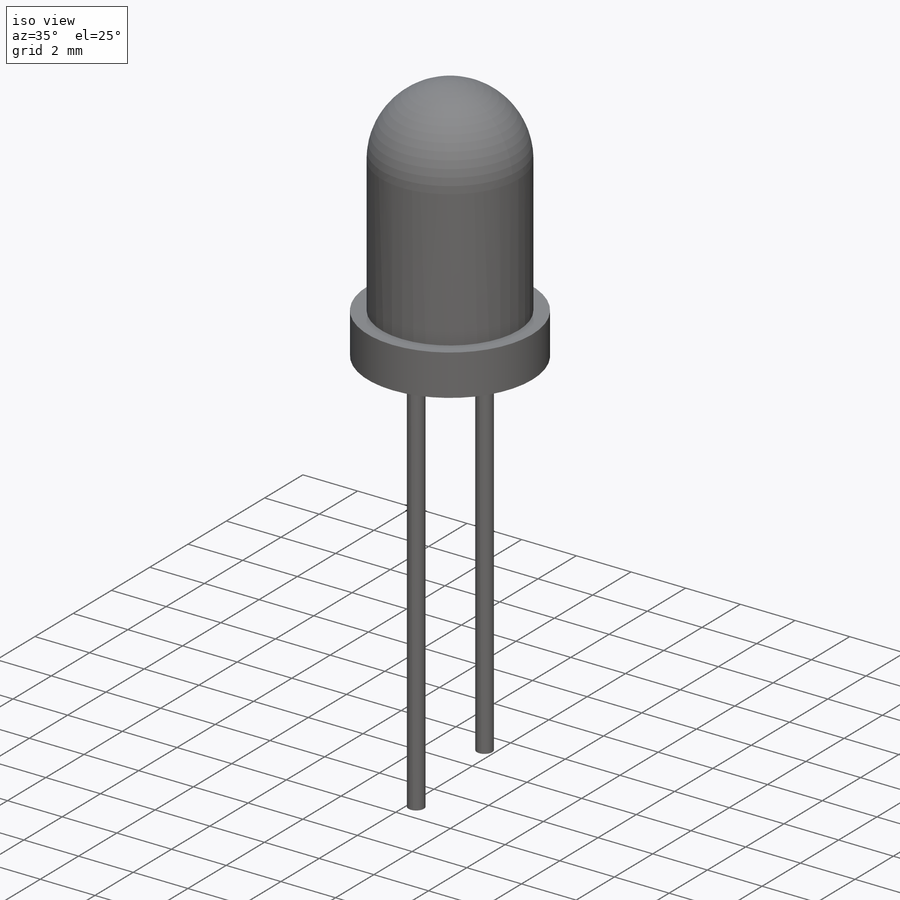
[diagram: iso view]
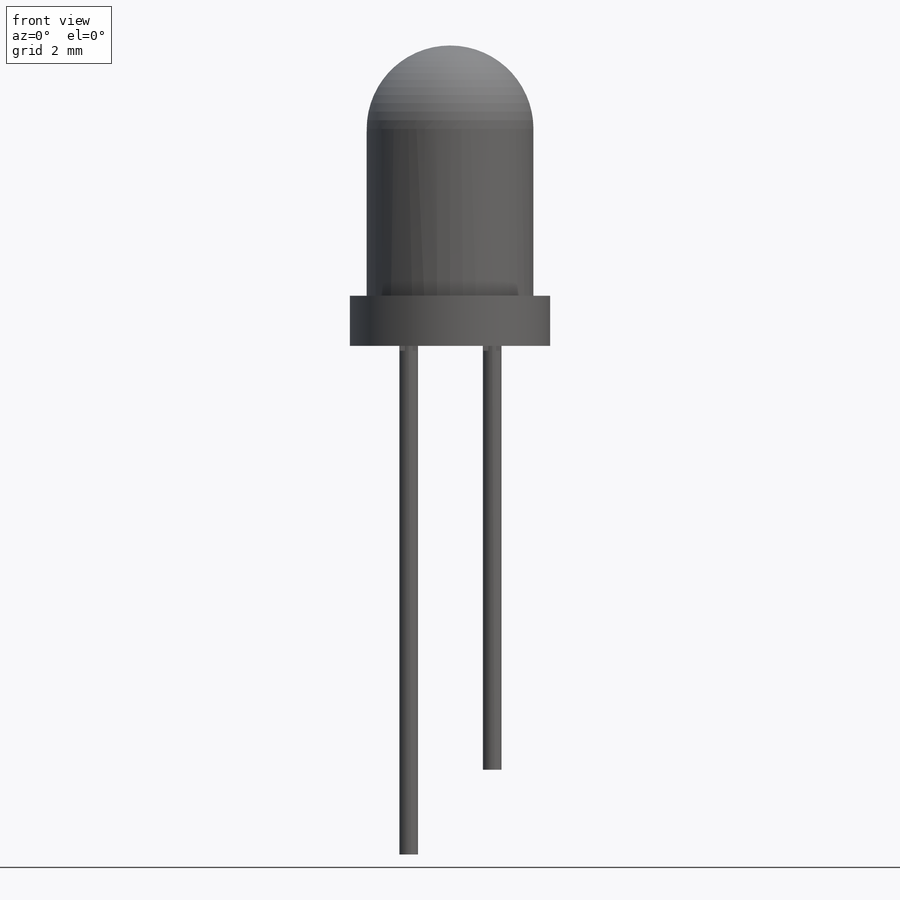
[diagram: front view]
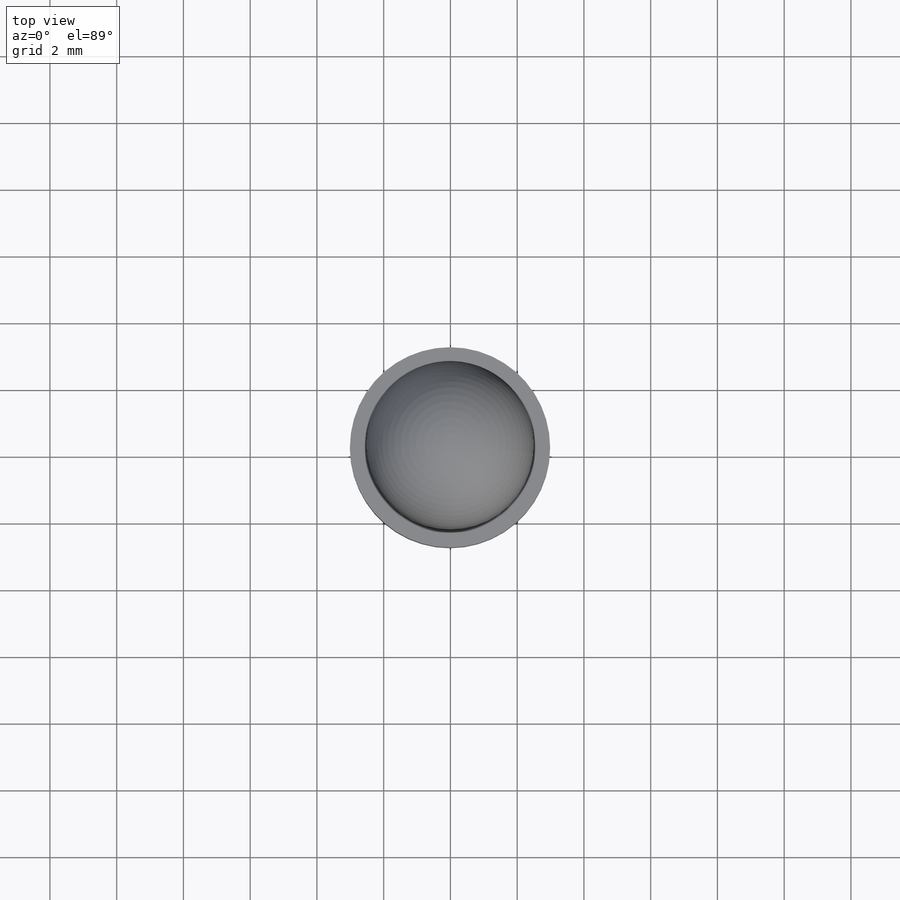
[diagram: top view]
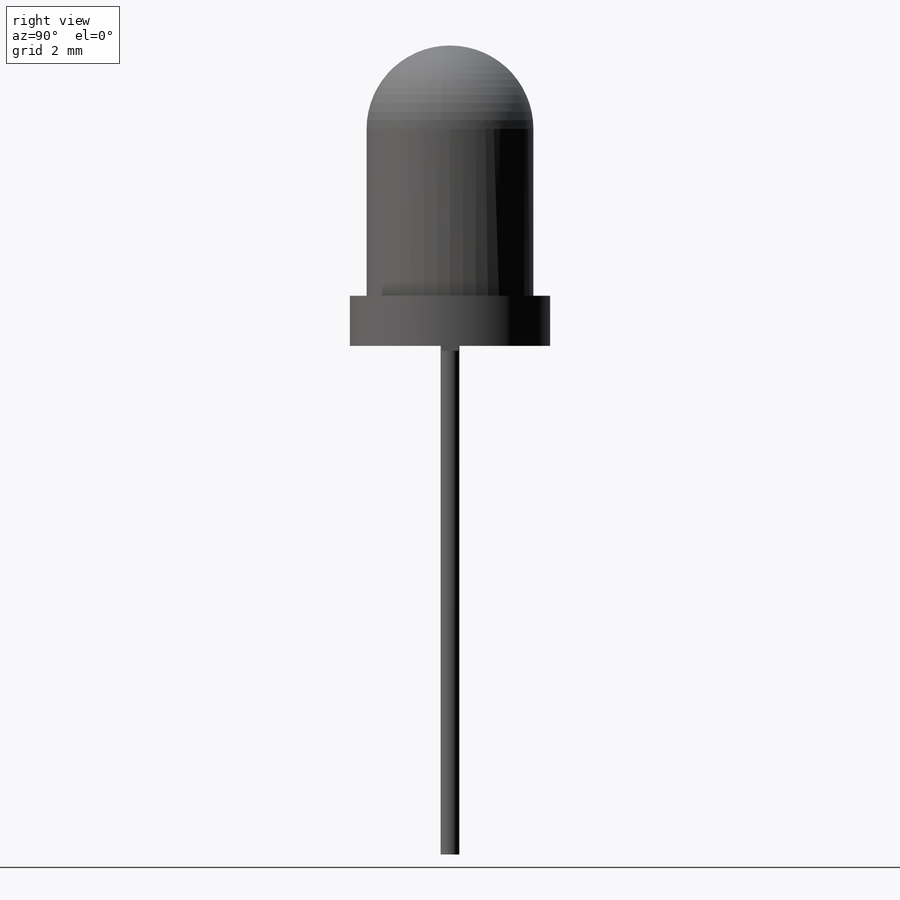
[diagram: right view]
SOLIDWORKS PART (.sldprt)
format: sldprt  version: not decoded by parser v0  size: 257,536 bytes
history: native  units: mm
features: sketch x4, shell x2, material x1, revolve x1, extrude x1, cut_extrude x1 (+14 scaffold rows collapsed)
feature tree (24):
  scaffold x14  (default folders/planes/origin — collapsed)
  material  "Material <not specified>"
  sketch  "Sketch1"  dims[c1.D3=2.5mm c1.D1=2.6924mm c1.D2=0.5mm c2.D3=2.6924mm c2.D1=3.0mm c2.D4=5.0mm c2.D5=9.0mm c2.D6=1.5mm]
  revolve  "LED"  Angle=360deg
  sketch  "Sketch2"  dims[D3=~0.27305mm D1=~1.25095mm D2=~1.25095mm]
  extrude  "Leads"  Depth=15.24mm
  shell  "LED Inner"  Thickness=0.127mm
  sketch  "Sketch4"
  shell  "Diode"  Thickness=0.254mm
  sketch  "Sketch5"  dims[D1=2.8mm]
  cut_extrude  "Cut-Extrude1"  Depth=2.54mm
decode coverage: 8 of 9 modeling features carry decoded parameters
note: ~ marks probable driven/reference dimensions
note: suppression state not decoded; provenance and decode notes live in map.json
